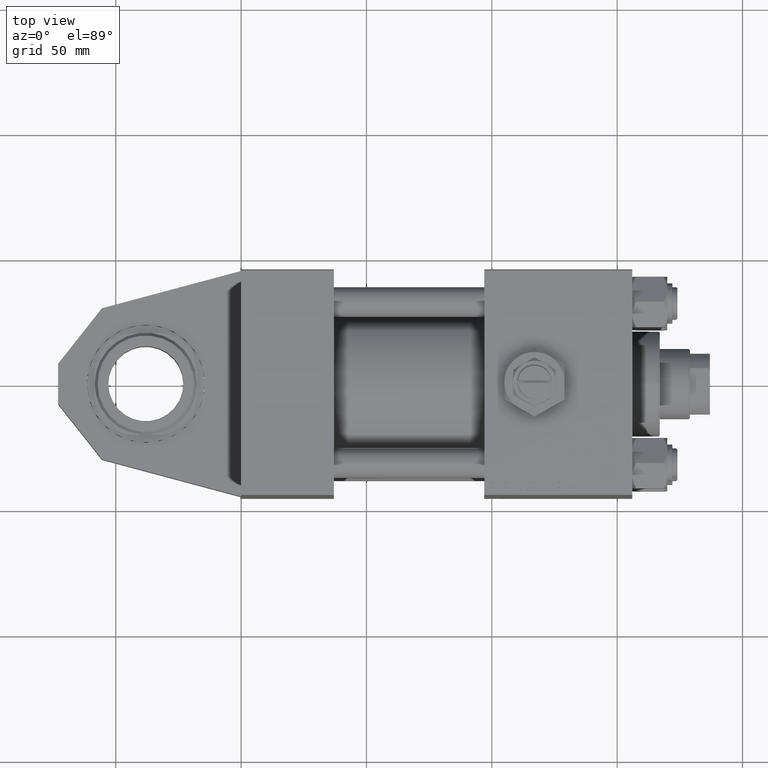
[diagram: clean part render]
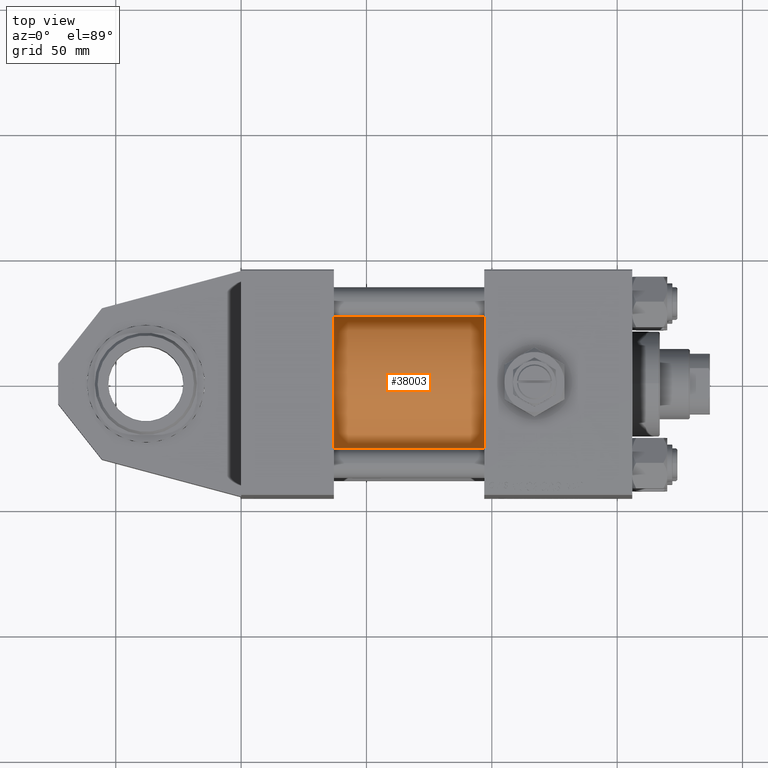
[diagram: same view with one face highlighted and labeled with its STEP entity id]
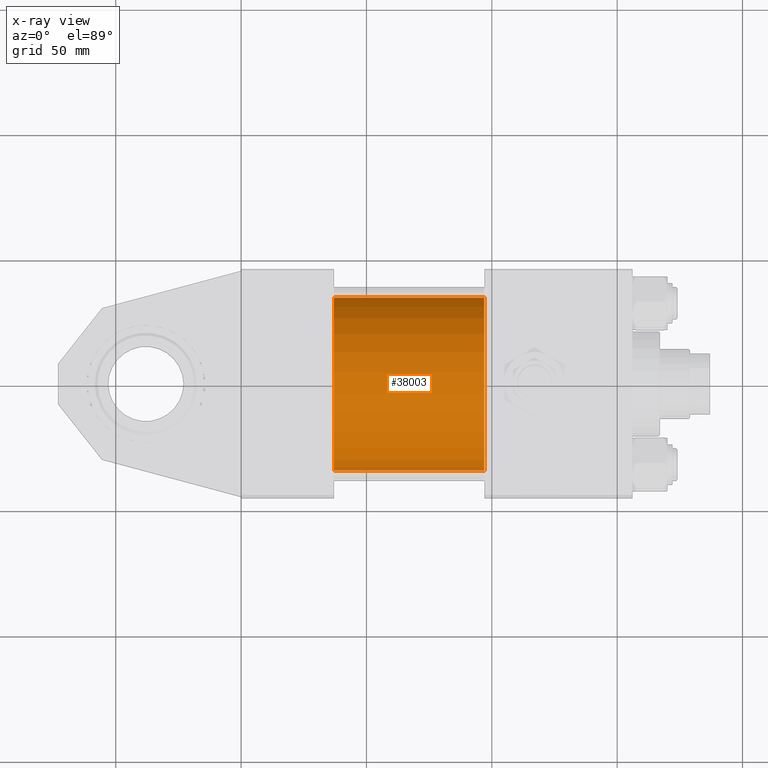
[diagram: x-ray of the same camera — body ghosted, the highlighted face saturated]
A machine part, top view. The second image highlights one B-rep face of the part: STEP entity #38003.
The next image is the same camera in x-ray: the body ghosted, the highlighted face saturated — about 2% of this face is hidden behind the body in this view.
In plain terms, the highlighted cylindrical surface (partial cylindrical patch) has radius 34.5 mm, axis along (-1, 0, -0).
Its self-contained STEP definition (entity closure, byte-faithful):
#1771 = DIRECTION ( 'NONE',  ( 0.000000000000000000, 0.000000000000000000, 1.000000000000000000 ) ) ;
#2266 = VERTEX_POINT ( 'NONE', #45682 ) ;
#4585 = DIRECTION ( 'NONE',  ( 0.000000000000000000, 0.000000000000000000, 1.000000000000000000 ) ) ;
#5069 = ORIENTED_EDGE ( 'NONE', *, *, #29661, .T. ) ;
#7294 = CARTESIAN_POINT ( 'NONE',  ( 37.00000000000000000, 1.622946243093158675E-15, -34.50000000000000000 ) ) ;
#7766 = LINE ( 'NONE', #39783, #29787 ) ;
#8268 = CARTESIAN_POINT ( 'NONE',  ( 37.00000000000000000, -2.602085213965210642E-15, 0.000000000000000000 ) ) ;
#8790 = VERTEX_POINT ( 'NONE', #7294 ) ;
#9086 = EDGE_CURVE ( 'NONE', #24549, #21366, #51071, .T. ) ;
#10907 = CARTESIAN_POINT ( 'NONE',  ( 97.00000000000000000, -2.602085213965210642E-15, 34.50000000000000000 ) ) ;
#12479 = DIRECTION ( 'NONE',  ( -1.000000000000000000, -0.000000000000000000, -0.000000000000000000 ) ) ;
#13583 = DIRECTION ( 'NONE',  ( -1.000000000000000000, -0.000000000000000000, -0.000000000000000000 ) ) ;
#13786 = DIRECTION ( 'NONE',  ( 0.000000000000000000, 0.000000000000000000, -1.000000000000000000 ) ) ;
#20086 = ORIENTED_EDGE ( 'NONE', *, *, #45359, .F. ) ;
#21366 = VERTEX_POINT ( 'NONE', #44826 ) ;
#22235 = FACE_OUTER_BOUND ( 'NONE', #39878, .T. ) ;
#24549 = VERTEX_POINT ( 'NONE', #43990 ) ;
#24765 = ORIENTED_EDGE ( 'NONE', *, *, #39969, .T. ) ;
#25167 = AXIS2_PLACEMENT_3D ( 'NONE', #33482, #49743, #13786 ) ;
#26140 = VECTOR ( 'NONE', #38465, 1000.000000000000000 ) ;
#28749 = DIRECTION ( 'NONE',  ( 1.000000000000000000, -0.000000000000000000, 0.000000000000000000 ) ) ;
#29661 = EDGE_CURVE ( 'NONE', #2266, #8790, #7766, .T. ) ;
#29787 = VECTOR ( 'NONE', #12479, 1000.000000000000000 ) ;
#32697 = CIRCLE ( 'NONE', #25167, 34.50000000000000000 ) ;
#33482 = CARTESIAN_POINT ( 'NONE',  ( 97.00000000000000000, -2.602085213965210642E-15, 0.000000000000000000 ) ) ;
#34299 = CIRCLE ( 'NONE', #46879, 34.50000000000000000 ) ;
#38003 = ADVANCED_FACE ( 'NONE', ( #22235 ), #41396, .T. ) ;
#38207 = ORIENTED_EDGE ( 'NONE', *, *, #9086, .F. ) ;
#38465 = DIRECTION ( 'NONE',  ( -1.000000000000000000, -0.000000000000000000, -0.000000000000000000 ) ) ;
#39783 = CARTESIAN_POINT ( 'NONE',  ( 97.00000000000000000, 1.622946243093158675E-15, -34.50000000000000000 ) ) ;
#39878 = EDGE_LOOP ( 'NONE', ( #20086, #5069, #24765, #38207 ) ) ;
#39969 = EDGE_CURVE ( 'NONE', #8790, #21366, #34299, .T. ) ;
#41396 = CYLINDRICAL_SURFACE ( 'NONE', #50149, 34.50000000000000000 ) ;
#43990 = CARTESIAN_POINT ( 'NONE',  ( 97.00000000000000000, -2.602085213965210642E-15, 34.50000000000000000 ) ) ;
#44826 = CARTESIAN_POINT ( 'NONE',  ( 37.00000000000000000, -2.602085213965210642E-15, 34.50000000000000000 ) ) ;
#45359 = EDGE_CURVE ( 'NONE', #2266, #24549, #32697, .T. ) ;
#45682 = CARTESIAN_POINT ( 'NONE',  ( 97.00000000000000000, 1.622946243093158675E-15, -34.50000000000000000 ) ) ;
#46879 = AXIS2_PLACEMENT_3D ( 'NONE', #8268, #28749, #4585 ) ;
#49288 = CARTESIAN_POINT ( 'NONE',  ( 97.00000000000000000, -2.602085213965210642E-15, 0.000000000000000000 ) ) ;
#49743 = DIRECTION ( 'NONE',  ( 1.000000000000000000, 0.000000000000000000, 0.000000000000000000 ) ) ;
#50149 = AXIS2_PLACEMENT_3D ( 'NONE', #49288, #13583, #1771 ) ;
#51071 = LINE ( 'NONE', #10907, #26140 ) ;